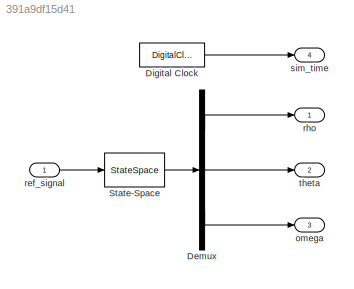
MODEL slx_391a9df15d41
KIND model
CONFIG AbsTol = auto
CONFIG FixedStep = dt
CONFIG MaxStep = auto
CONFIG MinStep = auto
CONFIG RelTol = 1e-3
CONFIG SampleTimeConstraint = Unconstrained
CONFIG Solver = FixedStepAuto
CONFIG SolverMode = SingleTasking
CONFIG SolverName = FixedStepAuto
CONFIG StartTime = t_s
CONFIG StopTime = t_e
BLOCK [Demux] Demux
  DisplayOption = bar
  Outputs = 3
  Ports = [1, 3]
BLOCK [DigitalClock] Digital Clock
  SampleTime = dt
BLOCK [StateSpace] State-Space
  A = A
  B = B
  C = C
  D = D
  Ports = [1, 1]
  X0 = init
BLOCK [Outport] omega
  IconDisplay = Port number
  Port = 3
BLOCK [Inport] ref_signal
  IconDisplay = Port number
BLOCK [Outport] rho
  IconDisplay = Port number
BLOCK [Outport] sim_time 
  IconDisplay = Port number
  Port = 4
BLOCK [Outport] theta
  IconDisplay = Port number
  Port = 2
LINE Demux:1 -> rho:1
LINE Demux:2 -> theta:1
LINE Demux:3 -> omega:1
LINE Digital Clock:1 -> sim_time :1
LINE State-Space:1 -> Demux:1
LINE ref_signal:1 -> State-Space:1
